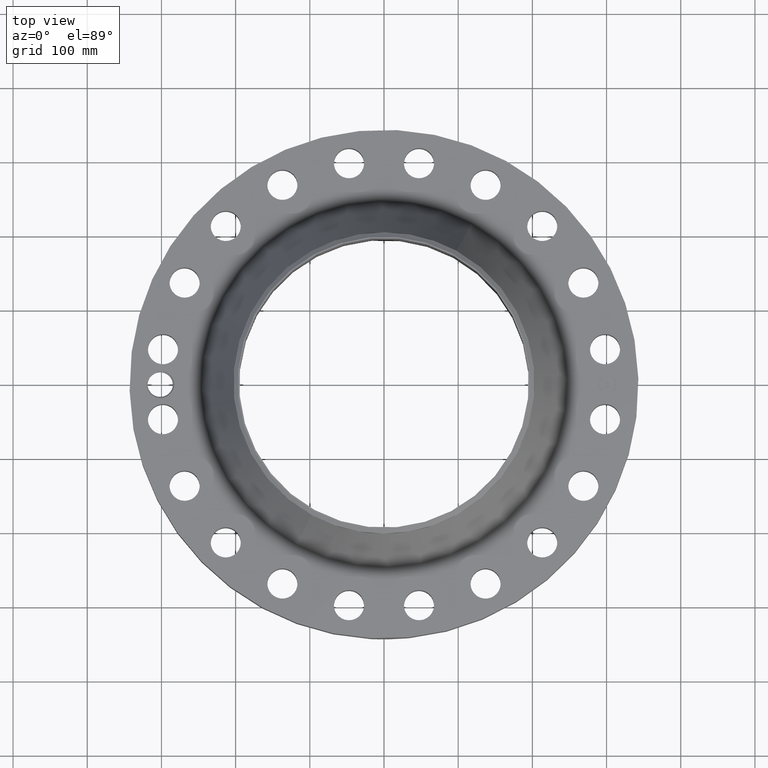
[diagram: clean part render]
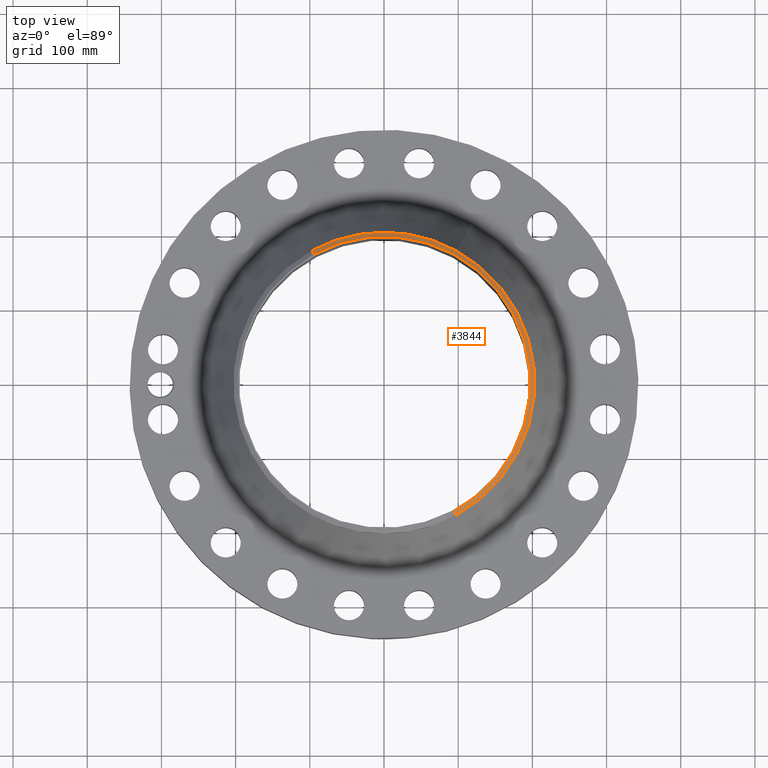
[diagram: same view with one face highlighted and labeled with its STEP entity id]
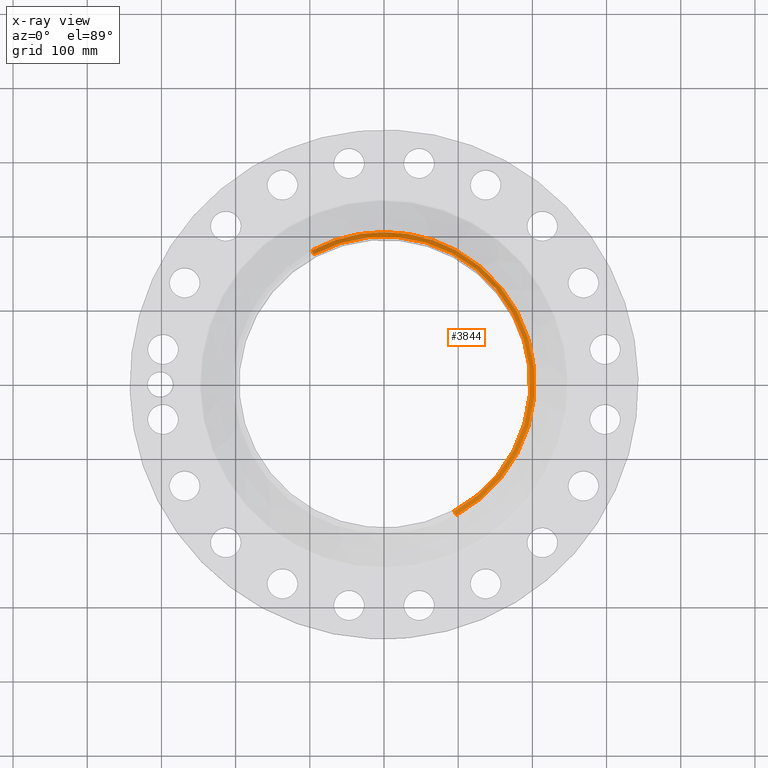
[diagram: x-ray of the same camera — body ghosted, the highlighted face saturated]
A machine part, top view. The second image highlights one B-rep face of the part: STEP entity #3844.
The next image is the same camera in x-ray: the body ghosted, the highlighted face saturated — about 0% of this face is hidden behind the body in this view.
In plain terms, the highlighted conical surface has half-angle 52.5 deg.
Its self-contained STEP definition (entity closure, byte-faithful):
#2956=AXIS2_PLACEMENT_3D('Circle Axis2P3D',#2954,#2955,$) ;
#3789=AXIS2_PLACEMENT_3D('Cone Axis2P3D',#3786,#3787,#3788) ;
#3827=AXIS2_PLACEMENT_3D('Circle Axis2P3D',#3825,#3826,$) ;
#3834=AXIS2_PLACEMENT_3D('Circle Axis2P3D',#3832,#3833,$) ;
#2954=CARTESIAN_POINT('Axis2P3D Location',(0.,0.,7.25000000003)) ;
#2958=CARTESIAN_POINT('Vertex',(3.72357358321,-6.81595572497,7.25000000003)) ;
#2960=CARTESIAN_POINT('Vertex',(-3.72357358321,6.81595572497,7.25000000003)) ;
#3786=CARTESIAN_POINT('Axis2P3D Location',(0.,0.,7.25000000003)) ;
#3791=CARTESIAN_POINT('Line Origine',(3.77948894603,-6.91830811006,7.16050671384)) ;
#3795=CARTESIAN_POINT('Vertex',(3.83540430885,-7.02066049515,7.07101342765)) ;
#3798=CARTESIAN_POINT('Line Origine',(-3.77948894603,6.91830811006,7.16050671384)) ;
#3802=CARTESIAN_POINT('Vertex',(-3.83540430885,7.02066049515,7.07101342765)) ;
#3825=CARTESIAN_POINT('Axis2P3D Location',(0.,0.,7.07101342765)) ;
#3829=CARTESIAN_POINT('Vertex',(3.83540430885,7.02066049515,7.07101342765)) ;
#3832=CARTESIAN_POINT('Axis2P3D Location',(0.,0.,7.07101342765)) ;
#2955=DIRECTION('Axis2P3D Direction',(0.,0.,-0.0393700787402)) ;
#3787=DIRECTION('Axis2P3D Direction',(-0.,-0.,-0.0393700787402)) ;
#3788=DIRECTION('Axis2P3D XDirection',(-0.0188750212049,0.0345504945626,0.)) ;
#3792=DIRECTION('Vector Direction',(0.014974561121,-0.02741075027,-0.023966985394)) ;
#3799=DIRECTION('Vector Direction',(-0.014974561121,0.02741075027,-0.023966985394)) ;
#3826=DIRECTION('Axis2P3D Direction',(0.,0.,-0.0393700787402)) ;
#3833=DIRECTION('Axis2P3D Direction',(0.,0.,-0.0393700787402)) ;
#3793=VECTOR('Line Direction',#3792,0.0393700787402) ;
#3800=VECTOR('Line Direction',#3799,0.0393700787402) ;
#3838=ORIENTED_EDGE('',*,*,#3804,.F.) ;
#3839=ORIENTED_EDGE('',*,*,#2962,.F.) ;
#3840=ORIENTED_EDGE('',*,*,#3797,.T.) ;
#3841=ORIENTED_EDGE('',*,*,#3831,.T.) ;
#3842=ORIENTED_EDGE('',*,*,#3836,.F.) ;
#3844=ADVANCED_FACE('PartBody',(#3843),#3790,.T.) ;
#2957=CIRCLE('generated circle',#2956,7.76674015751) ;
#3828=CIRCLE('generated circle',#3827,8.00000000003) ;
#3835=CIRCLE('generated circle',#3834,8.00000000003) ;
#3790=CONICAL_SURFACE('Cone',#3789,7.76674015751,0.916297857297) ;
#2962=EDGE_CURVE('',#2959,#2961,#2957,.F.) ;
#3797=EDGE_CURVE('',#2959,#3796,#3794,.T.) ;
#3804=EDGE_CURVE('',#2961,#3803,#3801,.T.) ;
#3831=EDGE_CURVE('',#3796,#3830,#3828,.F.) ;
#3836=EDGE_CURVE('',#3803,#3830,#3835,.T.) ;
#3837=EDGE_LOOP('',(#3838,#3839,#3840,#3841,#3842)) ;
#3843=FACE_OUTER_BOUND('',#3837,.T.) ;
#3794=LINE('Line',#3791,#3793) ;
#3801=LINE('Line',#3798,#3800) ;
#2959=VERTEX_POINT('',#2958) ;
#2961=VERTEX_POINT('',#2960) ;
#3796=VERTEX_POINT('',#3795) ;
#3803=VERTEX_POINT('',#3802) ;
#3830=VERTEX_POINT('',#3829) ;